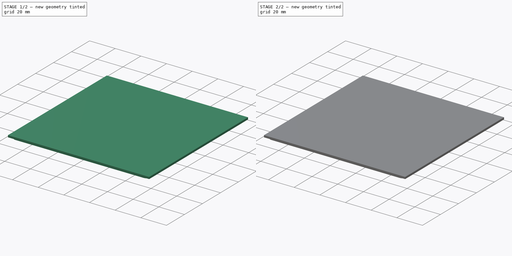
[diagram: build sequence overview — one tinted view per stage of 2, left to right]
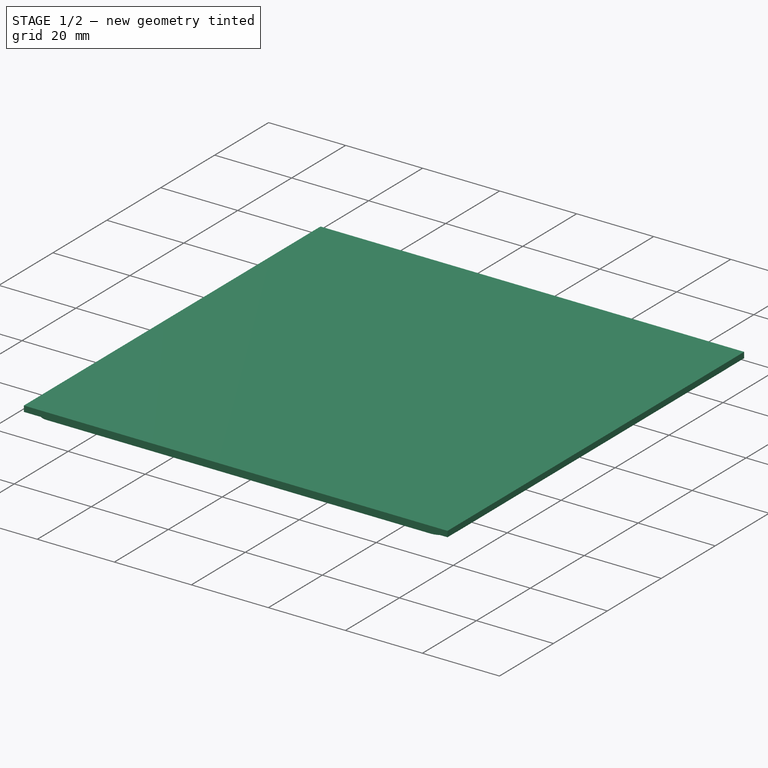
[diagram: stage 1 of 2 — iso view after this stage's code; geometry added in this stage tinted green]
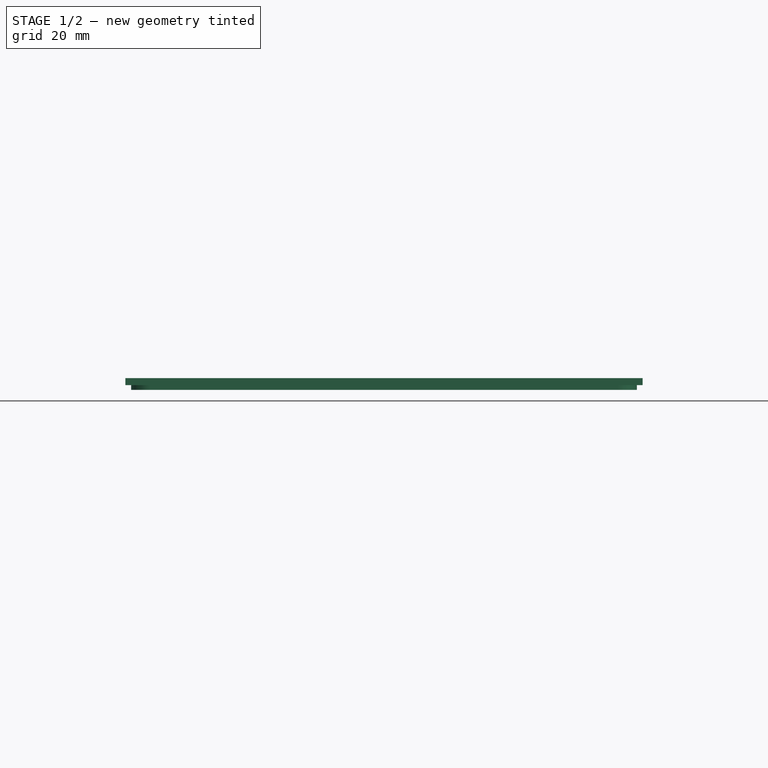
[diagram: stage 1 of 2 — front view after this stage's code; geometry added in this stage tinted green]
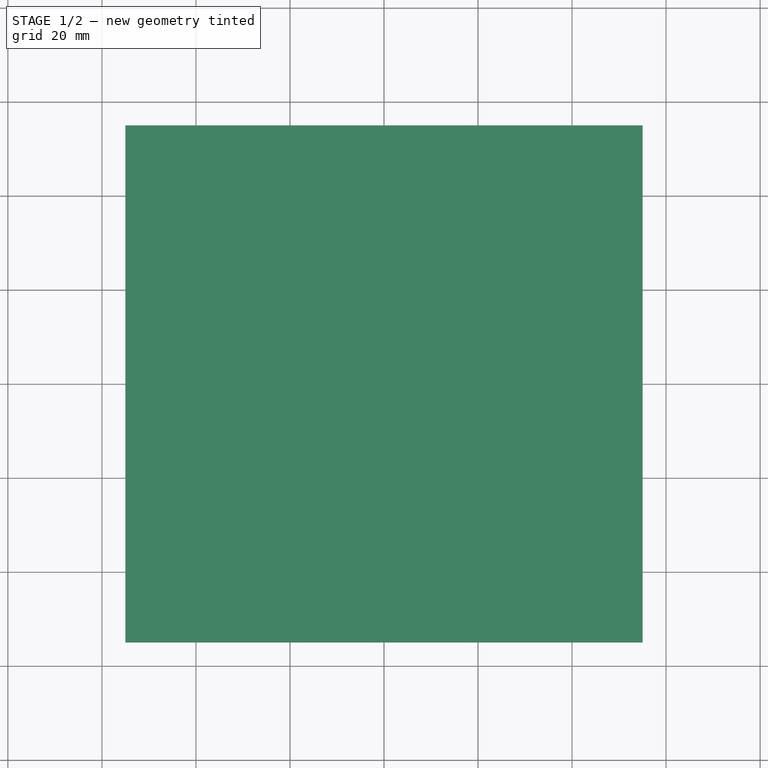
[diagram: stage 1 of 2 — top view after this stage's code; geometry added in this stage tinted green]
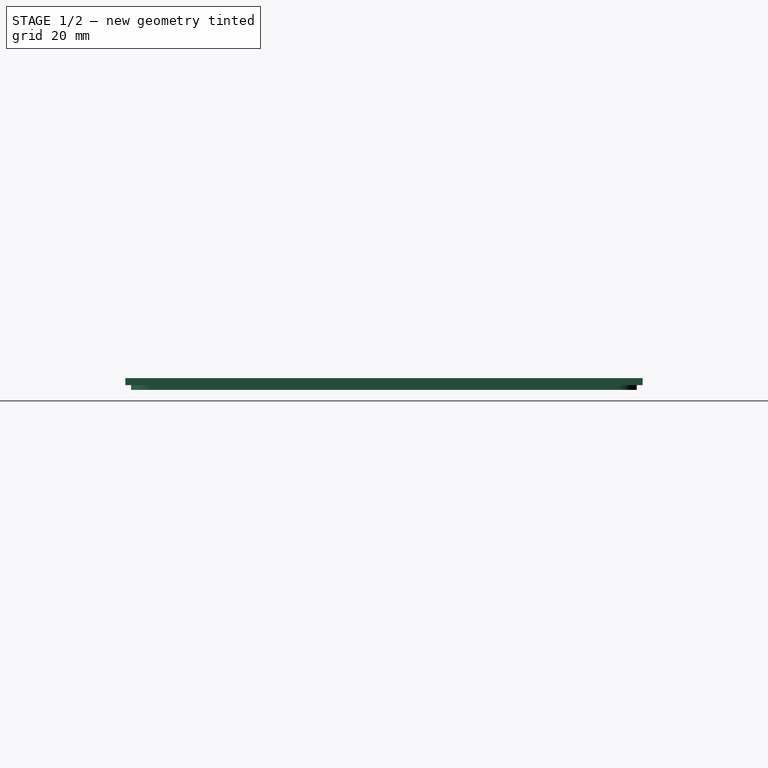
[diagram: stage 1 of 2 — right view after this stage's code; geometry added in this stage tinted green]
FCSTD DOCUMENT  (FreeCAD 0.18R16131 (Git))
Label: Pbf4 Outline 11cm
License: All rights reserved
LicenseURL: http://en.wikipedia.org/wiki/All_rights_reserved
objects: Sketcher::SketchObject×3, PartDesign::Pad×3, PartDesign::LinearPattern×1, PartDesign::Body×1
note: 11 computed .brp shape members not serialized (recipe doc carries the construction recipe); baked Part::Feature solids carry a one-line shape summary decoded from their .brp

FEATURE [Sketcher::SketchObject] Sketch001
  MapMode = 5
  Placement = pos=(0,0,0) rot=(1,0,0;3.14159rad)
  expr: Constraints[17] = 106.6 + 1
  sketch-geometry (19):
    g0: LineSegment StartX=-49.8 StartY=53.8 StartZ=0 EndX=49.8 EndY=53.8 EndZ=0
    g1: LineSegment StartX=53.8 StartY=49.8 StartZ=0 EndX=53.8 EndY=-49.8 EndZ=0
    g2: LineSegment StartX=49.8 StartY=-53.8 StartZ=0 EndX=-49.8 EndY=-53.8 EndZ=0
    g3: LineSegment StartX=-53.8 StartY=-49.8 StartZ=0 EndX=-53.8 EndY=49.8 EndZ=0
    g4: ArcOfCircle CenterX=49.8 CenterY=49.8 CenterZ=0 NormalX=0 NormalY=0 NormalZ=1 AngleXU=0 Radius=4 StartAngle=7e-16 EndAngle=1.5708
    g5: ArcOfCircle CenterX=49.8 CenterY=-49.8 CenterZ=0 NormalX=0 NormalY=0 NormalZ=1 AngleXU=0 Radius=4 StartAngle=4.71239 EndAngle=6.28319
    g6: ArcOfCircle CenterX=-49.8 CenterY=-49.8 CenterZ=0 NormalX=0 NormalY=0 NormalZ=1 AngleXU=0 Radius=4 StartAngle=3.14159 EndAngle=4.71239
    g7: ArcOfCircle CenterX=-49.8 CenterY=49.8 CenterZ=0 NormalX=0 NormalY=0 NormalZ=1 AngleXU=0 Radius=4 StartAngle=1.5708 EndAngle=3.14159
    g8: LineSegment StartX=-49.8 StartY=52.8 StartZ=0 EndX=49.8 EndY=52.8 EndZ=0
    g9: LineSegment StartX=52.8 StartY=49.8 StartZ=0 EndX=52.8 EndY=-49.8 EndZ=0
    g10: LineSegment StartX=49.8 StartY=-52.8 StartZ=0 EndX=-49.8 EndY=-52.8 EndZ=0
    g11: LineSegment StartX=-52.8 StartY=-49.8 StartZ=0 EndX=-52.8 EndY=49.8 EndZ=0
    g12: ArcOfCircle CenterX=-49.8 CenterY=49.8 CenterZ=0 NormalX=0 NormalY=0 NormalZ=1 AngleXU=0 Radius=3 StartAngle=1.5708 EndAngle=3.14159
    g13: ArcOfCircle CenterX=49.8 CenterY=49.8 CenterZ=0 NormalX=0 NormalY=0 NormalZ=1 AngleXU=0 Radius=3 StartAngle=0 EndAngle=1.5708
    g14: ArcOfCircle CenterX=49.8 CenterY=-49.8 CenterZ=0 NormalX=0 NormalY=0 NormalZ=1 AngleXU=0 Radius=3 StartAngle=4.71239 EndAngle=6.28319
    g15: ArcOfCircle CenterX=-49.8 CenterY=-49.8 CenterZ=0 NormalX=0 NormalY=0 NormalZ=1 AngleXU=0 Radius=3 StartAngle=3.14159 EndAngle=4.71239
    g16: LineSegment [constr] StartX=-49.8 StartY=49.8 StartZ=0 EndX=0 EndY=0 EndZ=0
    g17: LineSegment [constr] StartX=0 StartY=0 StartZ=0 EndX=49.8 EndY=49.8 EndZ=0
    g18: LineSegment [constr] StartX=0 StartY=0 StartZ=0 EndX=-49.8 EndY=-49.8 EndZ=0
  constraints (44):
    c: Horizontal(g0)
    c: Horizontal(g2)
    c: Vertical(g1)
    c: Vertical(g3)
    c: Tangent(g0,g4) = 1.5708
    c: Tangent(g1,g4) = 1.5708
    c: Tangent(g1,g5) = 1.5708
    c: Tangent(g2,g5) = 1.5708
    c: Tangent(g2,g6) = 1.5708
    c: Tangent(g3,g6) = 1.5708
    c: Tangent(g3,g7) = 1.5708
    c: Tangent(g0,g7) = 1.5708
    c: Radius(g7) = 4
    c: Equal(g7,g4)
    c: Equal(g7,g5)
    c: Equal(g7,g6)
    c: Equal(g3,g0)
    c: DistanceX(g3,g1) = 107.6
    c: Horizontal(g8)
    c: Horizontal(g10)
    c: Vertical(g9)
    c: Vertical(g11)
    c: Tangent(g11,g12) = 1.5708
    c: Tangent(g8,g12) = 1.5708
    c: Tangent(g8,g13) = 1.5708
    c: Tangent(g9,g13) = 1.5708
    c: Tangent(g10,g14) = 1.5708
    c: Tangent(g9,g14) = 1.5708
    c: Tangent(g11,g15) = 1.5708
    c: Tangent(g10,g15) = 1.5708
    c: Equal(g15,g14)
    c: Equal(g15,g13)
    c: Equal(g15,g12)
    c: Coincident(g16,g7)
    c: Coincident(g16,g-1)
    c: Coincident(g17,g-1)
    c: Coincident(g17,g4)
    c: Coincident(g18,g-1)
    c: Coincident(g18,g6)
    c: Equal(g17,g16)
    c: Equal(g16,g18)
    c: Coincident(g12,g7)
    c: Coincident(g14,g5)
    c: DistanceY(g8,g0) = 1
FEATURE [Sketcher::SketchObject] Sketch
  MapMode = 5
  Support = -> [XY_Plane]
  sketch-geometry (5):
    g0: LineSegment StartX=-55 StartY=55 StartZ=0 EndX=-55 EndY=-55 EndZ=0
    g1: LineSegment StartX=-55 StartY=-55 StartZ=0 EndX=55 EndY=-55 EndZ=0
    g2: LineSegment StartX=55 StartY=-55 StartZ=0 EndX=55 EndY=55 EndZ=0
    g3: LineSegment StartX=55 StartY=55 StartZ=0 EndX=-55 EndY=55 EndZ=0
    g4: Circle [constr] CenterX=0 CenterY=0 CenterZ=0 NormalX=0 NormalY=0 NormalZ=1 AngleXU=0 Radius=77.7817
  constraints (14):
    c: Coincident(g0,g1)
    c: Coincident(g1,g2)
    c: Coincident(g2,g3)
    c: Coincident(g3,g0)
    c: Equal(g0,g1)
    c: Equal(g0,g2)
    c: Equal(g0,g3)
    c: PointOnObject(g0,g4)
    c: PointOnObject(g1,g4)
    c: PointOnObject(g2,g4)
    c: PointOnObject(g3,g4)
    c: Horizontal(g3)
    c: Coincident(g4,g-1)
    c: DistanceX(g3,g3) = 110
FEATURE [Sketcher::SketchObject] Sketch002
  MapMode = 5
  Placement = pos=(0,0,0) rot=(1,0,0;3.14159rad)
  sketch-geometry (40):
    g0: Circle CenterX=-40.005 CenterY=40.005 CenterZ=0 NormalX=0 NormalY=0 NormalZ=1 AngleXU=0 Radius=6
    g1: Circle CenterX=-40.005 CenterY=49.505 CenterZ=0 NormalX=0 NormalY=0 NormalZ=1 AngleXU=0 Radius=1.5
    g2: LineSegment [constr] StartX=-40.005 StartY=49.505 StartZ=0 EndX=-40.005 EndY=40.005 EndZ=0
    g3: Circle CenterX=-40.005 CenterY=25 CenterZ=0 NormalX=0 NormalY=0 NormalZ=1 AngleXU=0 Radius=1.5
    g4: Circle CenterX=-40.005 CenterY=-30.505 CenterZ=0 NormalX=0 NormalY=0 NormalZ=1 AngleXU=0 Radius=1.5
    g5: LineSegment [constr] StartX=-40.005 StartY=-30.505 StartZ=0 EndX=-40.005 EndY=-40.005 EndZ=0
    g6: Circle CenterX=-40.005 CenterY=-40.005 CenterZ=0 NormalX=0 NormalY=0 NormalZ=1 AngleXU=0 Radius=5
    g7: ArcOfCircle CenterX=-40.005 CenterY=18.1 CenterZ=0 NormalX=0 NormalY=0 NormalZ=1 AngleXU=0 Radius=0.75 StartAngle=2.3e-15 EndAngle=3.14159
    g8: ArcOfCircle CenterX=-40.005 CenterY=-18.1 CenterZ=0 NormalX=0 NormalY=0 NormalZ=1 AngleXU=0 Radius=0.75 StartAngle=3.14159 EndAngle=6.28319
    g9: LineSegment [constr] StartX=-40.755 StartY=18.1 StartZ=0 EndX=-40.755 EndY=-18.1 EndZ=0
    g10: LineSegment [constr] StartX=-39.255 StartY=18.1 StartZ=0 EndX=-39.255 EndY=-18.1 EndZ=0
    g11: LineSegment StartX=-40.755 StartY=18.1 StartZ=0 EndX=-40.755 EndY=4.5 EndZ=0
    g12: LineSegment StartX=-39.255 StartY=18.1 StartZ=0 EndX=-39.255 EndY=4.5 EndZ=0
    g13: LineSegment StartX=-40.755 StartY=4.5 StartZ=0 EndX=-39.255 EndY=4.5 EndZ=0
    g14: LineSegment StartX=-40.755 StartY=-18.1 StartZ=0 EndX=-40.755 EndY=-4.5 EndZ=0
    g15: LineSegment StartX=-40.755 StartY=-4.5 StartZ=0 EndX=-39.255 EndY=-4.5 EndZ=0
    g16: LineSegment StartX=-39.255 StartY=-4.5 StartZ=0 EndX=-39.255 EndY=-18.1 EndZ=0
    g17: LineSegment StartX=-46.005 StartY=3.5 StartZ=0 EndX=-34.005 EndY=3.5 EndZ=0
    g18: LineSegment StartX=-34.005 StartY=3.5 StartZ=0 EndX=-34.005 EndY=-3.5 EndZ=0
    g19: LineSegment StartX=-34.005 StartY=-3.5 StartZ=0 EndX=-46.005 EndY=-3.5 EndZ=0
    g20: LineSegment StartX=-46.005 StartY=-3.5 StartZ=0 EndX=-46.005 EndY=3.5 EndZ=0
    g21: LineSegment StartX=-45.005 StartY=0.5 StartZ=0 EndX=-35.005 EndY=0.5 EndZ=0
    g22: LineSegment StartX=-35.005 StartY=0.5 StartZ=0 EndX=-35.005 EndY=-0.5 EndZ=0
    g23: LineSegment StartX=-35.005 StartY=-0.5 StartZ=0 EndX=-45.005 EndY=-0.5 EndZ=0
    g24: LineSegment StartX=-45.005 StartY=-0.5 StartZ=0 EndX=-45.005 EndY=0.5 EndZ=0
    g25: LineSegment [constr] StartX=-46.005 StartY=3.5 StartZ=0 EndX=-40.005 EndY=0 EndZ=0
    g26: LineSegment [constr] StartX=-40.005 StartY=0 StartZ=0 EndX=-34.005 EndY=3.5 EndZ=0
    g27: LineSegment [constr] StartX=-40.005 StartY=0 StartZ=0 EndX=-34.005 EndY=-3.5 EndZ=0
    g28: LineSegment [constr] StartX=-45.005 StartY=0.5 StartZ=0 EndX=-40.005 EndY=0 EndZ=0
    g29: LineSegment [constr] StartX=-35.005 StartY=0.5 StartZ=0 EndX=-40.005 EndY=0 EndZ=0
    g30: LineSegment [constr] StartX=-35.005 StartY=-0.5 StartZ=0 EndX=-40.005 EndY=0 EndZ=0
    g31: ArcOfCircle CenterX=-40.005 CenterY=40.005 CenterZ=0 NormalX=0 NormalY=0 NormalZ=1 AngleXU=0 Radius=5 StartAngle=5.51069 EndAngle=11.5935
    g32: LineSegment [constr] StartX=-40.005 StartY=40.005 StartZ=0 EndX=-34.005 EndY=32.8545 EndZ=0
    g33: LineSegment StartX=-37.1902 StartY=35.8726 StartZ=0 EndX=-38.9257 EndY=37.9409 EndZ=0
    g34: LineSegment StartX=-36.4241 StartY=36.5154 StartZ=0 EndX=-38.1597 EndY=38.5837 EndZ=0
    g35: LineSegment StartX=-38.8887 StartY=38.3636 StartZ=0 EndX=-38.5823 EndY=38.6207 EndZ=0
    g36: ArcOfCircle CenterX=-38.6959 CenterY=38.1337 CenterZ=0 NormalX=0 NormalY=0 NormalZ=1 AngleXU=0 Radius=0.3 StartAngle=2.26893 EndAngle=3.83972
    g37: ArcOfCircle CenterX=-38.3895 CenterY=38.3909 CenterZ=0 NormalX=0 NormalY=0 NormalZ=1 AngleXU=0 Radius=0.3 StartAngle=0.698132 EndAngle=2.26893
    g38: LineSegment [constr] StartX=-40.005 StartY=18.1 StartZ=0 EndX=0 EndY=0 EndZ=0
    g39: LineSegment [constr] StartX=0 StartY=0 StartZ=0 EndX=-40.005 EndY=-18.1 EndZ=0
  constraints (105):
    c: DistanceX(g0,g-1) = 40.005
    c: DistanceY(g-1,g0) = 40.005
    c: Radius(g1) = 1.5
    c: Coincident(g2,g1)
    c: Coincident(g2,g0)
    c: Vertical(g2)
    c: DistanceY(g0,g1) = 9.5
    c: Coincident(g5,g4)
    c: Vertical(g5)
    c: Radius(g0) = 6
    c: DistanceY(g-1,g3) = 25
    c: Tangent(g7,g10) = 1.5708
    c: Tangent(g7,g9) = -1.5708
    c: Tangent(g9,g8) = -1.5708
    c: Tangent(g10,g8) = 1.5708
    c: Vertical(g9)
    c: Equal(g7,g8)
    c: DistanceX(g7,g7) = 1.5
    c: DistanceY(g8,g7) = 36.2
    c: Coincident(g11,g7)
    c: Coincident(g12,g7)
    c: Coincident(g13,g11)
    c: Coincident(g13,g12)
    c: Horizontal(g13)
    c: PointOnObject(g11,g9)
    c: PointOnObject(g12,g10)
    c: Coincident(g14,g8)
    c: PointOnObject(g14,g9)
    c: Coincident(g15,g14)
    c: Horizontal(g15)
    c: Coincident(g16,g15)
    c: Coincident(g16,g8)
    c: PointOnObject(g15,g10)
    c: Coincident(g17,g18)
    c: Coincident(g18,g19)
    c: Coincident(g19,g20)
    c: Coincident(g20,g17)
    c: Horizontal(g17)
    c: Horizontal(g19)
    c: Vertical(g18)
    c: Vertical(g20)
    c: Coincident(g21,g22)
    c: Coincident(g22,g23)
    c: Coincident(g23,g24)
    c: Coincident(g24,g21)
    c: Horizontal(g21)
    c: Horizontal(g23)
    c: Vertical(g22)
    c: Vertical(g24)
    c: Coincident(g25,g17)
    c: PointOnObject(g25,g-1)
    c: Coincident(g26,g25)
    c: Coincident(g26,g17)
    c: Coincident(g27,g25)
    c: Coincident(g27,g18)
    c: Equal(g27,g26)
    c: Equal(g26,g25)
    c: Coincident(g28,g21)
    c: Coincident(g28,g25)
    c: Coincident(g29,g21)
    c: Coincident(g29,g25)
    c: Coincident(g30,g22)
    c: Coincident(g30,g25)
    c: Equal(g28,g29)
    c: Equal(g29,g30)
    c: DistanceY(g24,g24) = 1
    c: DistanceX(g17,g21) = 1
    c: DistanceY(g21,g17) = 3
    c: DistanceX(g17,g17) = 12
    c: DistanceY(g17,g11) = 1
    c: Coincident(g31,g0)
    c: Radius(g31) = 5
    c: Coincident(g32,g0)
    c: Coincident(g33,g31)
    c: Coincident(g34,g31)
    c: Parallel(g33,g32)
    c: Parallel(g32,g34)
    c: Distance(g31,g32) = 0.5
    c: Distance(g31,g32) = 0.5
    c: Perpendicular(g33,g35)
    c: Tangent(g33,g36) = 1.5708
    c: Tangent(g35,g36) = 1.5708
    c: Tangent(g35,g37) = 1.5708
    c: Tangent(g34,g37) = -1.5708
    c: Radius(g37) = 0.3
    c: Equal(g37,g36)
    c: Distance(g33,g31) = 2.7
    c: DistanceY(g6,g-1) = 40.005
    c: DistanceX(g6,g-1) = 40.005
    c: Radius(g6) = 5
    c: DistanceY(g5,g5) = 9.5
    c: Equal(g4,g1)
    c: Equal(g1,g3)
    c: Coincident(g5,g6)
    c: DistanceY(g14,g19) = 1
    c: Coincident(g38,g7)
    c: Coincident(g38,g-1)
    c: Coincident(g39,g-1)
    c: Coincident(g39,g8)
    c: Equal(g39,g38)
    c: DistanceX(g7,g-1) = 40.005
    c: DistanceX(g25,g-1) = 40.005
    c: DistanceX(g3,g-1) = 40.005
    c: DistanceX(g32,g32) = 6
    c: Angle(g32,g-2) = 2.44346
FEATURE [PartDesign::Pad] Pad
  Length = 1.5
  Length2 = 100
  Profile = -> Sketch
  Type = 0
FEATURE [PartDesign::Pad] Pad001
  BaseFeature = -> Pad
  Length = 1
  Length2 = 100
  Profile = -> Sketch001
  Type = 0
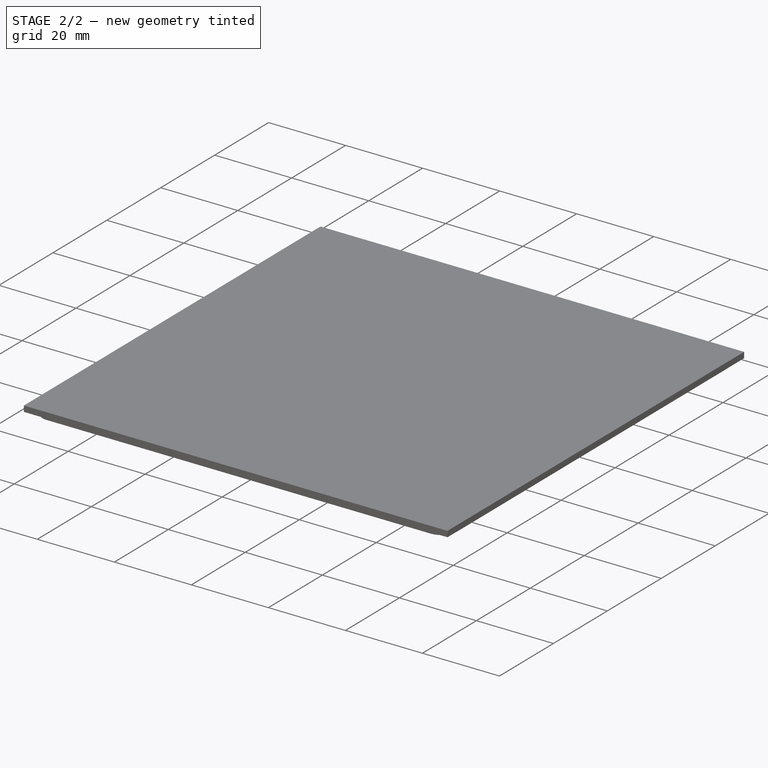
[diagram: stage 2 of 2 — iso view after this stage's code; geometry added in this stage tinted green]
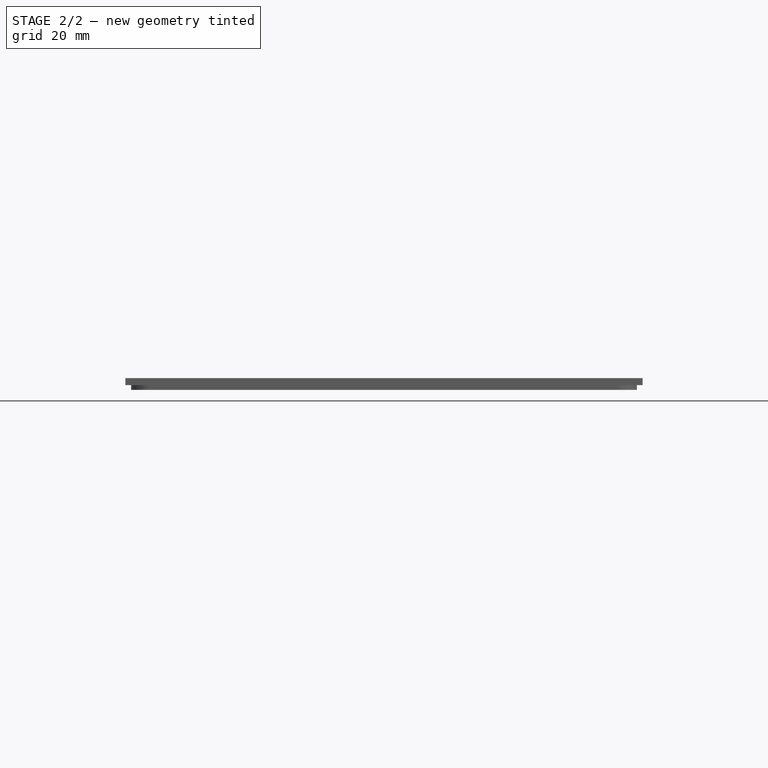
[diagram: stage 2 of 2 — front view after this stage's code; geometry added in this stage tinted green]
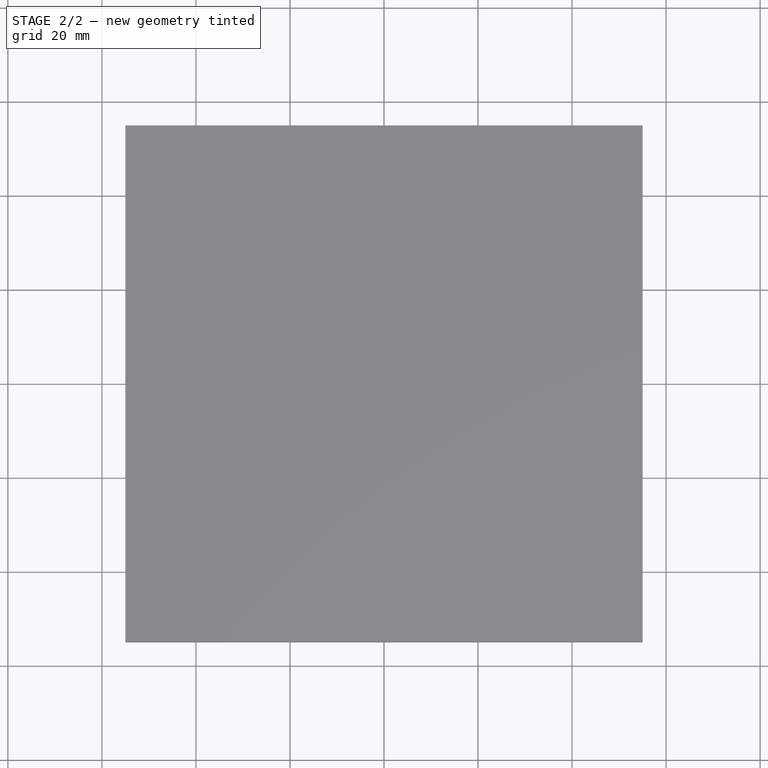
[diagram: stage 2 of 2 — top view after this stage's code; geometry added in this stage tinted green]
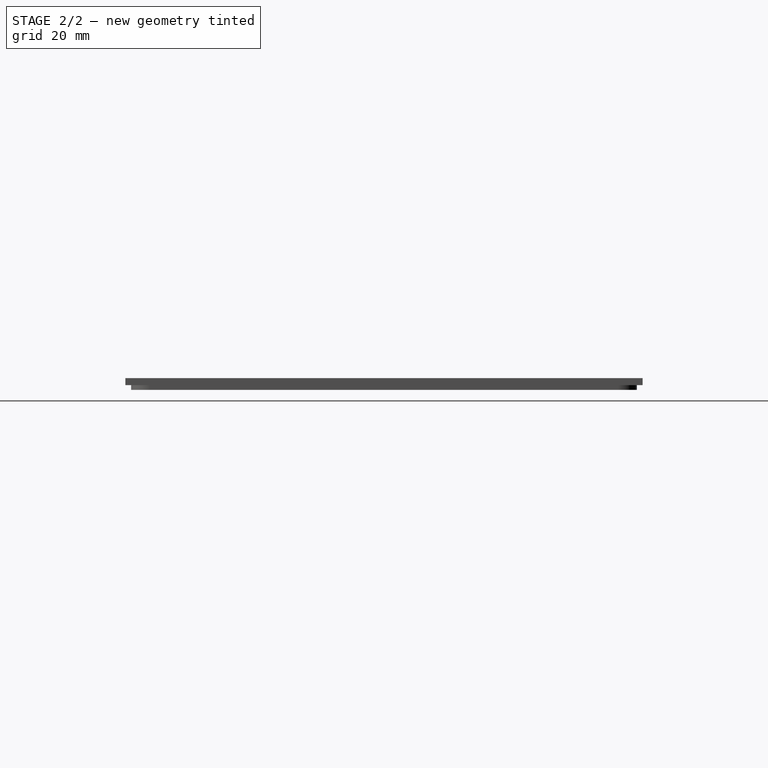
[diagram: stage 2 of 2 — right view after this stage's code; geometry added in this stage tinted green]
FEATURE [PartDesign::Pad] Pad002
  BaseFeature = -> Pad001
  Length = 1
  Length2 = 100
  Profile = -> Sketch002
  Type = 0
FEATURE [PartDesign::LinearPattern] LinearPattern
  BaseFeature = -> Pad002
  Direction = -> X_Axis
  Length = 80.01
  Occurrences = 4
  Originals = -> [Pad002]
FEATURE [PartDesign::Body] Body  label="PBF4_Outline"
  Group = -> [Sketch,Sketch001,Sketch002,Pad,Pad001,Pad002,LinearPattern]
  Origin = -> Origin
  Tip = -> LinearPattern
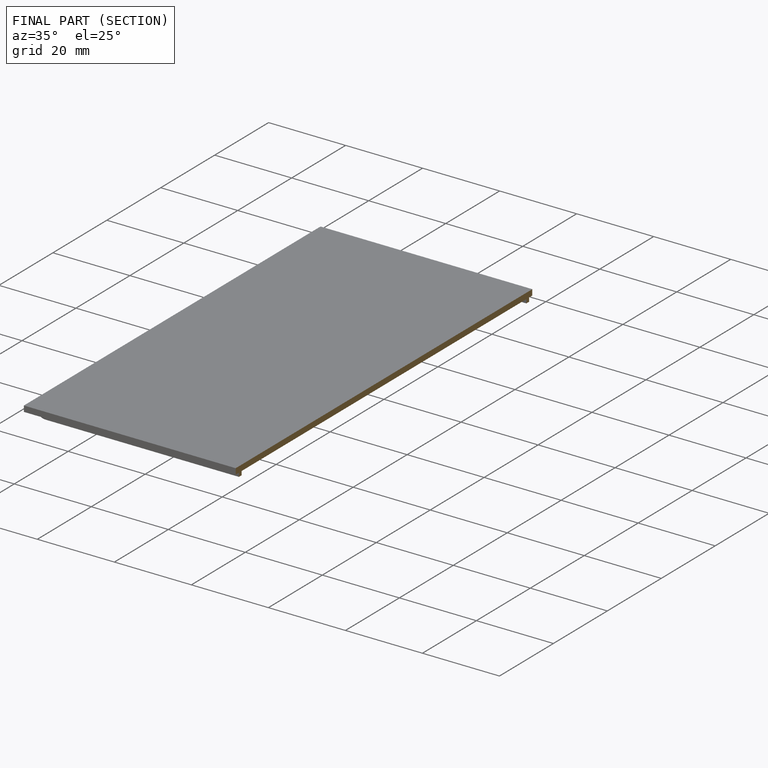
[diagram: finished part — half-section view (interior)]
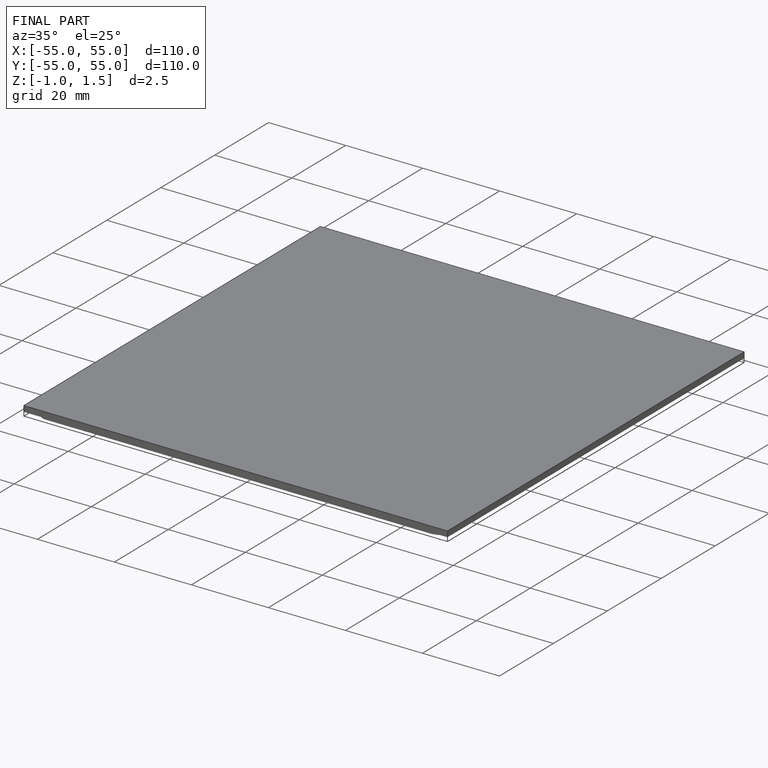
[diagram: finished part — iso view with bounding-box wireframe]
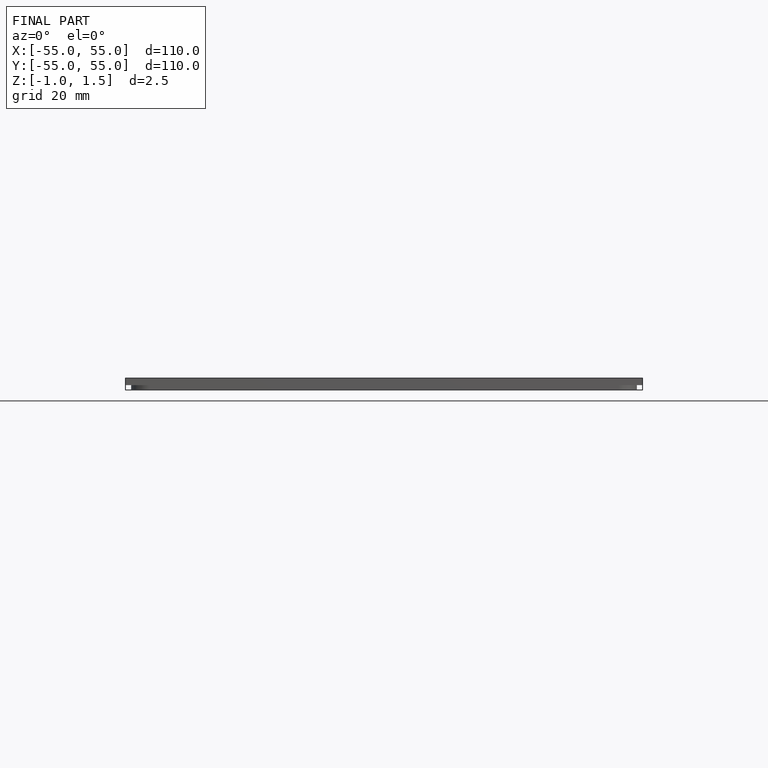
[diagram: finished part — front view with bounding-box wireframe]
